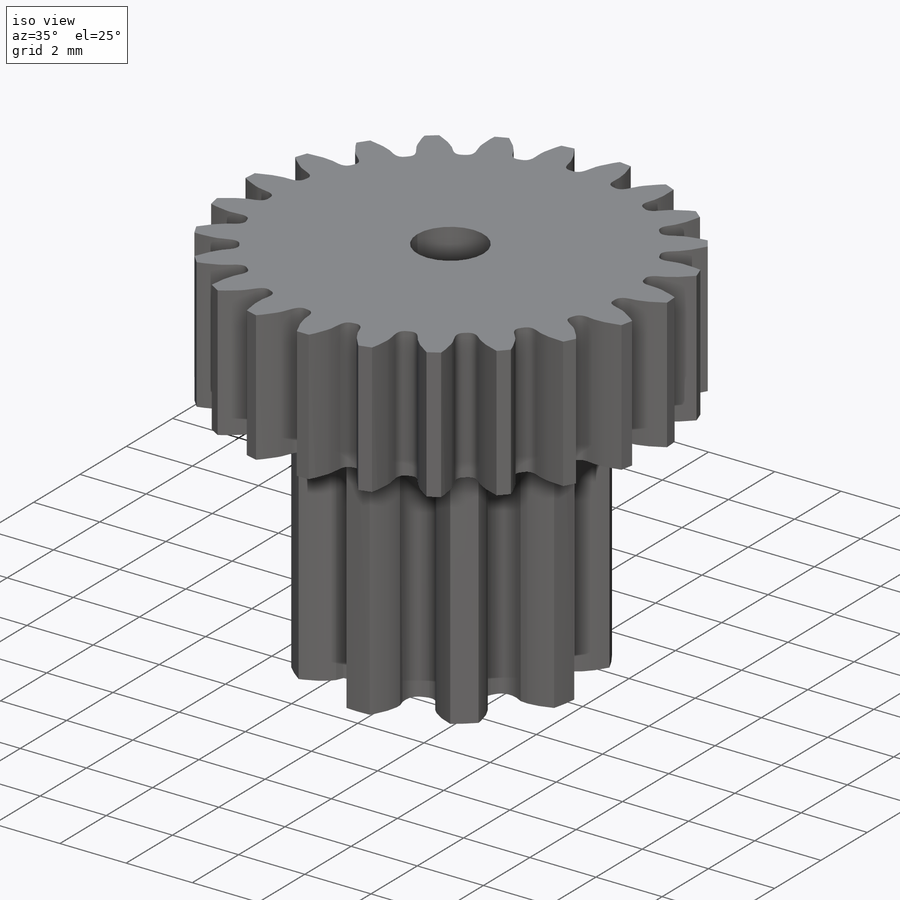
[diagram: iso view]
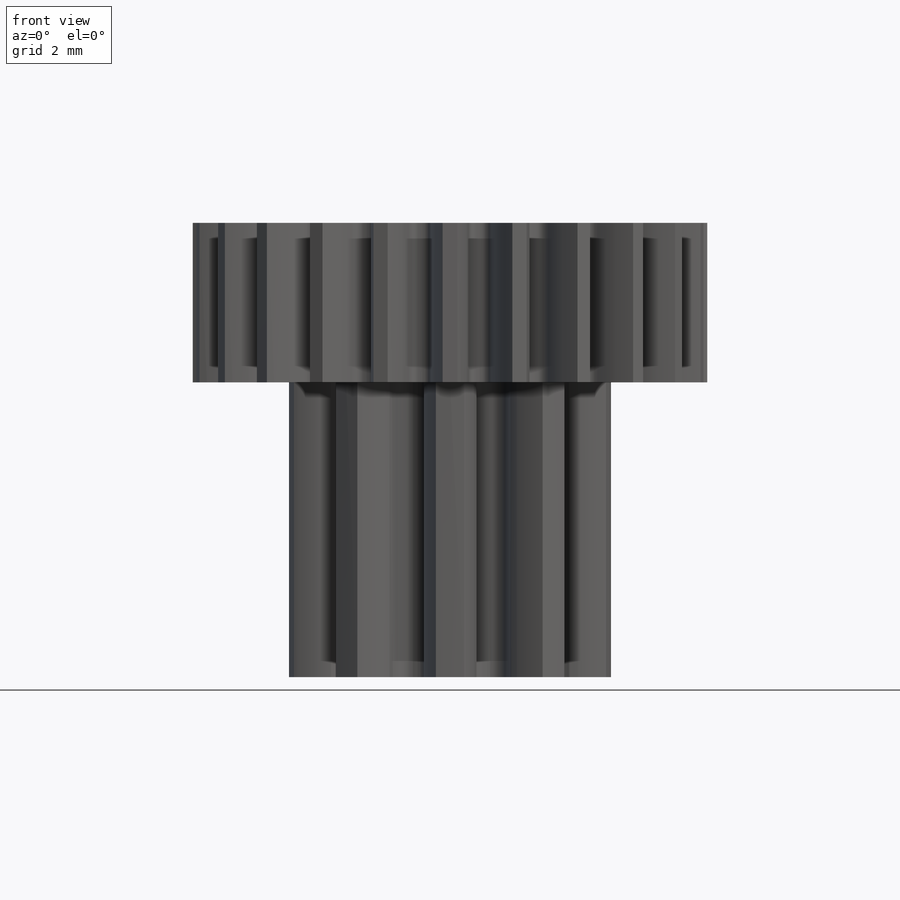
[diagram: front view]
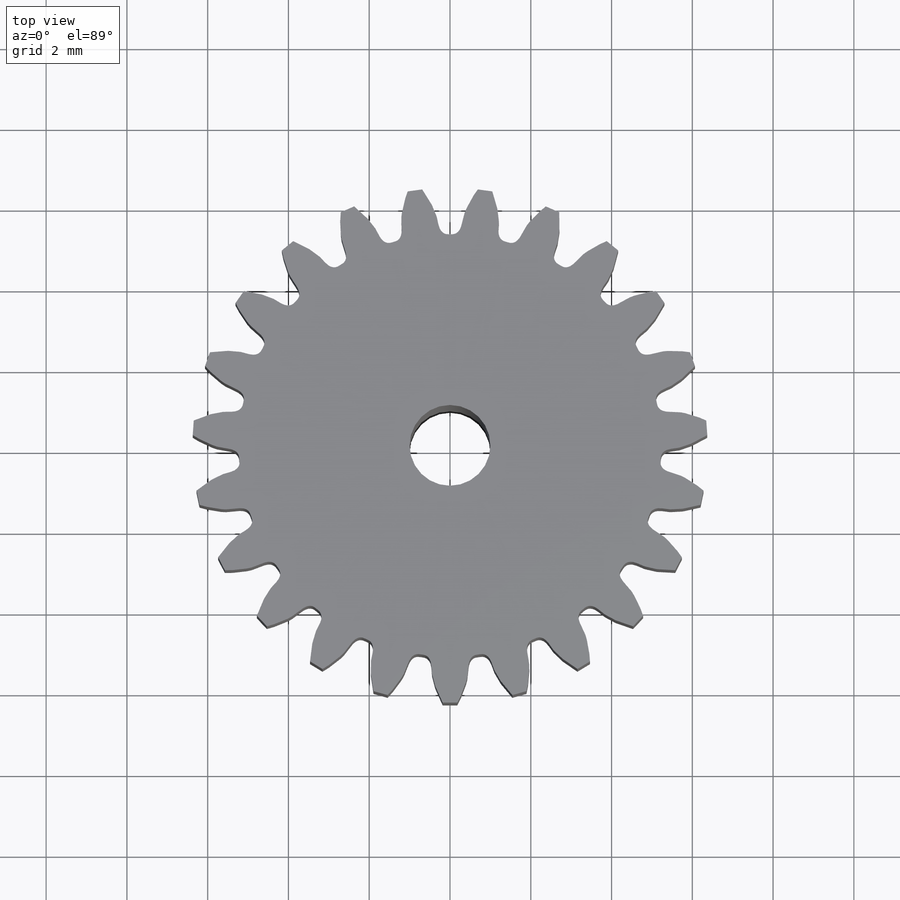
[diagram: top view]
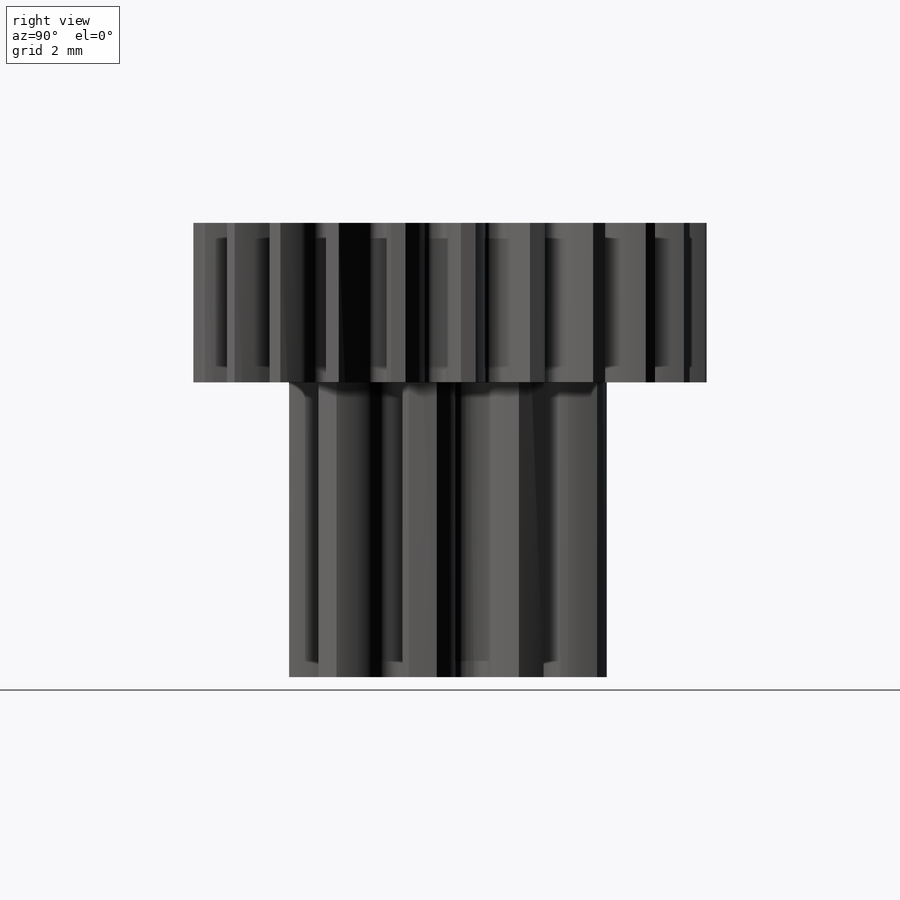
[diagram: right view]
SOLIDWORKS PART (.sldprt)
format: sldprt  version: not decoded by parser v0  size: 724,480 bytes
history: native  units: mm
features: sketch x6, cut_extrude x4, pattern_circular x2, material x1, revolve x1 (+16 scaffold rows collapsed)
feature tree (30):
  scaffold x16  (default folders/planes/origin — collapsed)
  material  "Material <not specified>"
  sketch  "Sketch1"  dims[D1=6.375mm D2=3.95mm D3=11.25mm D4=4.0mm]
  revolve  "Revolve1"  Angle=360deg
  sketch  "Sketch2"  dims[D1=1.6mm]
  cut_extrude  "Cut-Extrude1"  [1 undecoded]
  sketch  "Sketch9"  dims[D1=2.0mm]
  cut_extrude  "Cut-Extrude8"  [1 undecoded]
  sketch  "Sketch6"
  cut_extrude  "Cut-Extrude5"  [1 undecoded]
  pattern_circular  "CirPattern3"  Count=23 Angle=360deg
  sketch  "Sketch8"
  cut_extrude  "Cut-Extrude7"  [1 undecoded]
  pattern_circular  "CirPattern5"  Count=9 Angle=360deg
  sketch  "Sketch for Gear Mate"
decode coverage: 6 of 13 modeling features carry decoded parameters
note: 4 parameter values undecoded
summary: no parameter record found for 4 features
note: suppression state not decoded; provenance and decode notes live in map.json
